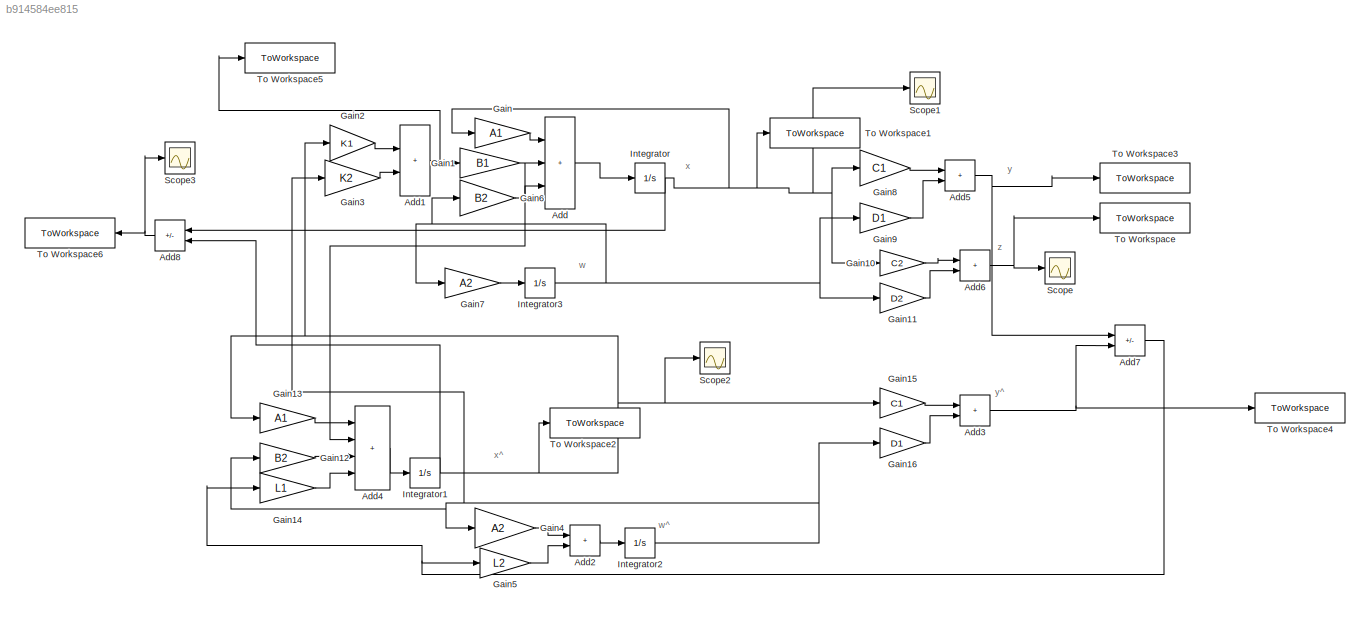
MODEL slx_b914584ee815
KIND model
CONFIG AbsTol = auto
CONFIG EnableMultiTasking = off
CONFIG FixedStep = 0.001
CONFIG MaxStep = auto
CONFIG MinStep = auto
CONFIG RelTol = 1e-3
CONFIG SampleTimeConstraint = Unconstrained
CONFIG SolverName = FixedStepAuto
CONFIG StartTime = 0.0
CONFIG StopTime = 20
BLOCK [Sum] Add
  IconShape = rectangular
  Inputs = +++
BLOCK [Sum] Add1
  IconShape = rectangular
BLOCK [Sum] Add2
  IconShape = rectangular
BLOCK [Sum] Add3
  IconShape = rectangular
BLOCK [Sum] Add4
  IconShape = rectangular
  Inputs = ++++
BLOCK [Sum] Add5
  IconShape = rectangular
BLOCK [Sum] Add6
  IconShape = rectangular
BLOCK [Sum] Add7
  IconShape = rectangular
  Inputs = -+
BLOCK [Sum] Add8
  IconShape = rectangular
  Inputs = +-
  NameLocation = top
BLOCK [Gain] Gain
  Gain = A1
  Multiplication = Matrix(K*u)
BLOCK [Gain] Gain1
  Gain = B1
  Multiplication = Matrix(K*u)
BLOCK [Gain] Gain10
  Gain = C2
  Multiplication = Matrix(K*u)
BLOCK [Gain] Gain11
  Gain = D2
  Multiplication = Matrix(K*u)
BLOCK [Gain] Gain12
  Gain = B2
  Multiplication = Matrix(K*u)
BLOCK [Gain] Gain13
  Gain = A1
  Multiplication = Matrix(K*u)
BLOCK [Gain] Gain14
  Gain = L1
  Multiplication = Matrix(K*u)
BLOCK [Gain] Gain15
  Gain = C1
  Multiplication = Matrix(K*u)
BLOCK [Gain] Gain16
  Gain = D1
  Multiplication = Matrix(K*u)
BLOCK [Gain] Gain2
  Gain = K1
  Multiplication = Matrix(K*u)
BLOCK [Gain] Gain3
  Gain = K2
  Multiplication = Matrix(K*u)
BLOCK [Gain] Gain4
  Gain = A2
  Multiplication = Matrix(K*u)
BLOCK [Gain] Gain5
  Gain = L2
  Multiplication = Matrix(K*u)
BLOCK [Gain] Gain6
  Gain = B2
  Multiplication = Matrix(K*u)
BLOCK [Gain] Gain7
  Gain = A2
  Multiplication = Matrix(K*u)
BLOCK [Gain] Gain8
  Gain = C1
  Multiplication = Matrix(K*u)
BLOCK [Gain] Gain9
  Gain = D1
  Multiplication = Matrix(K*u)
BLOCK [Integrator] Integrator
  InitialCondition = x0
BLOCK [Integrator] Integrator1
  InitialCondition = x1
BLOCK [Integrator] Integrator2
  InitialCondition = w1
BLOCK [Integrator] Integrator3
  InitialCondition = w0
BLOCK [Scope] Scope
  Floating = off
  NumInputPorts = 1
  ScopeSpecificationString = Simulink.scopes.TimeScopeBlockCfg('CurrentConfiguration', extmgr.ConfigurationSet(extmgr.Configuration('Core','General UI',true),extmgr.Configuration('Core','Source UI',true),extmgr.Configuration('Sources','WiredSimulink',true),extmgr.Configuration('Visuals','Time Domain',true,'SerializedDisplays',{struct('MinYLimReal','-757.35086','MaxYLimReal','747.03315','YLabelReal','','MinYLimMag',' 0.00000',...<+1338ch>
BLOCK [Scope] Scope1
  Floating = off
  NumInputPorts = 1
  ScopeSpecificationString = Simulink.scopes.TimeScopeBlockCfg('CurrentConfiguration', extmgr.ConfigurationSet(extmgr.Configuration('Core','General UI',true),extmgr.Configuration('Core','Source UI',true),extmgr.Configuration('Sources','WiredSimulink',true,'DataLoggingVariableName','ScopeData1'),extmgr.Configuration('Visuals','Time Domain',true,'SerializedDisplays',{struct('MinYLimReal','-1539.99984','MaxYLimReal','1403.2737',...<+1421ch>
BLOCK [Scope] Scope2
  Floating = off
  NumInputPorts = 1
  ScopeSpecificationString = Simulink.scopes.TimeScopeBlockCfg('CurrentConfiguration', extmgr.ConfigurationSet(extmgr.Configuration('Core','General UI',true),extmgr.Configuration('Core','Source UI',true),extmgr.Configuration('Sources','WiredSimulink',true,'DataLoggingVariableName','ScopeData2'),extmgr.Configuration('Visuals','Time Domain',true,'SerializedDisplays',{struct('MinYLimReal','-5740282408.02448','MaxYLimReal','24735...<+1474ch>
BLOCK [Scope] Scope3
  Floating = off
  NumInputPorts = 1
  ScopeSpecificationString = Simulink.scopes.TimeScopeBlockCfg('CurrentConfiguration', extmgr.ConfigurationSet(extmgr.Configuration('Core','General UI',true),extmgr.Configuration('Core','Source UI',true),extmgr.Configuration('Sources','WiredSimulink',true,'DataLoggingVariableName','ScopeData1'),extmgr.Configuration('Visuals','Time Domain',true,'SerializedDisplays',{struct('MinYLimReal','-561.88015','MaxYLimReal','336.47075','...<+1441ch>
BLOCK [ToWorkspace] To Workspace
  FixptAsFi = on
  MaxDataPoints = inf
  SampleTime = -1
  SaveFormat = Timeseries
  VariableName = z
BLOCK [ToWorkspace] To Workspace1
  FixptAsFi = on
  MaxDataPoints = inf
  SampleTime = -1
  SaveFormat = Timeseries
  VariableName = x
BLOCK [ToWorkspace] To Workspace2
  FixptAsFi = on
  MaxDataPoints = inf
  SampleTime = -1
  SaveFormat = Timeseries
  VariableName = xx
BLOCK [ToWorkspace] To Workspace3
  FixptAsFi = on
  MaxDataPoints = inf
  SampleTime = -1
  SaveFormat = Timeseries
  VariableName = y
BLOCK [ToWorkspace] To Workspace4
  FixptAsFi = on
  MaxDataPoints = inf
  SampleTime = -1
  SaveFormat = Timeseries
  VariableName = yy
BLOCK [ToWorkspace] To Workspace5
  FixptAsFi = on
  MaxDataPoints = inf
  SampleTime = -1
  SaveFormat = Timeseries
  VariableName = u
BLOCK [ToWorkspace] To Workspace6
  FixptAsFi = on
  MaxDataPoints = inf
  NameLocation = top
  SampleTime = -1
  SaveFormat = Timeseries
  VariableName = e
ANNOTATION (root): w
ANNOTATION (root): w^
ANNOTATION (root): x
ANNOTATION (root): x^
ANNOTATION (root): y
ANNOTATION (root): y^
ANNOTATION (root): z
NET Add1:1 -> Gain1:1, To Workspace5:1
LINE Add2:1 -> Integrator2:1
NET Add3:1 -> Add7:2, To Workspace4:1
LINE Add4:1 -> Integrator1:1
NET Add5:1 -> Add7:1, To Workspace3:1
NET Add6:1 -> Scope:1, To Workspace:1
NET Add7:1 -> Gain14:1, Gain5:1
NET Add8:1 -> Scope3:1, To Workspace6:1
LINE Add:1 -> Integrator:1
LINE Gain10:1 -> Add6:1
LINE Gain11:1 -> Add6:2
LINE Gain12:1 -> Add4:3
LINE Gain13:1 -> Add4:1
LINE Gain14:1 -> Add4:4
LINE Gain15:1 -> Add3:1
LINE Gain16:1 -> Add3:2
NET Gain1:1 -> Add4:2, Add:2
LINE Gain2:1 -> Add1:1
LINE Gain3:1 -> Add1:2
LINE Gain4:1 -> Add2:1
LINE Gain5:1 -> Add2:2
LINE Gain6:1 -> Add:3
LINE Gain7:1 -> Integrator3:1
LINE Gain8:1 -> Add5:1
LINE Gain9:1 -> Add5:2
LINE Gain:1 -> Add:1
NET Integrator1:1 -> Add8:2, Gain13:1, Gain15:1, Gain2:1, Scope2:1, To Workspace2:1
NET Integrator2:1 -> Gain12:1, Gain16:1, Gain3:1, Gain4:1
NET Integrator3:1 -> Gain11:1, Gain6:1, Gain7:1, Gain9:1
NET Integrator:1 -> Add8:1, Gain10:1, Gain8:1, Gain:1, Scope1:1, To Workspace1:1
note: NET lines group one-source signal fan-out (src -> all destinations, sorted); 1:1 wires keep LINE
